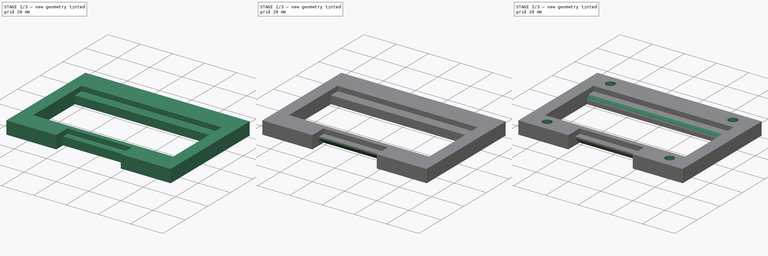
[diagram: build sequence overview — one tinted view per stage of 3, left to right]
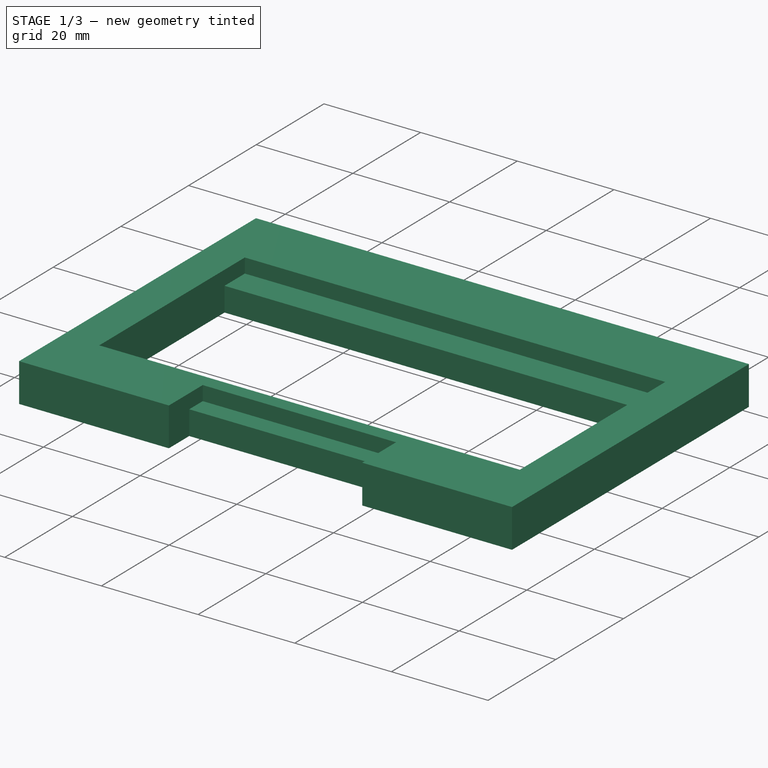
[diagram: stage 1 of 3 — iso view after this stage's code; geometry added in this stage tinted green]
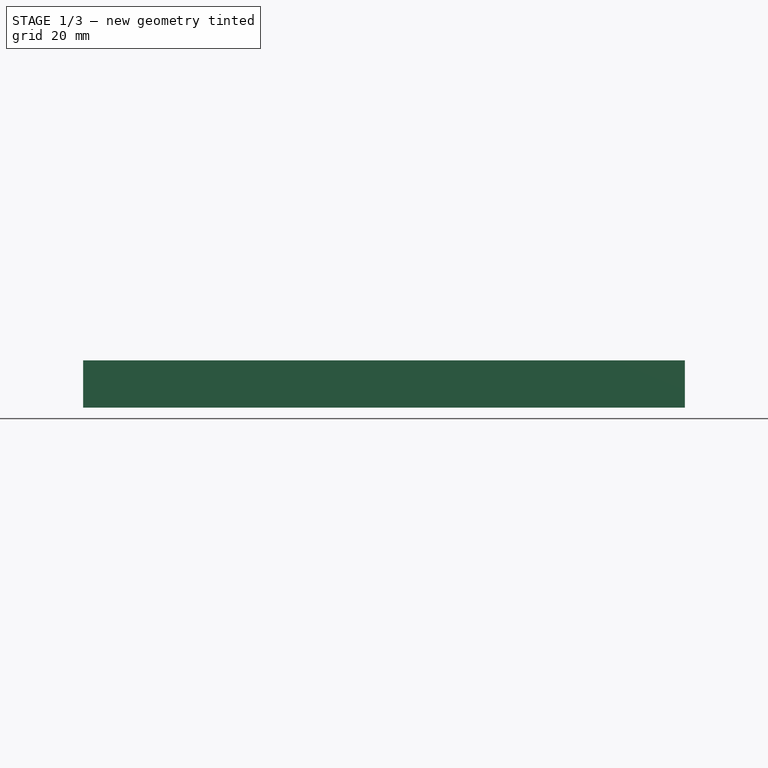
[diagram: stage 1 of 3 — front view after this stage's code; geometry added in this stage tinted green]
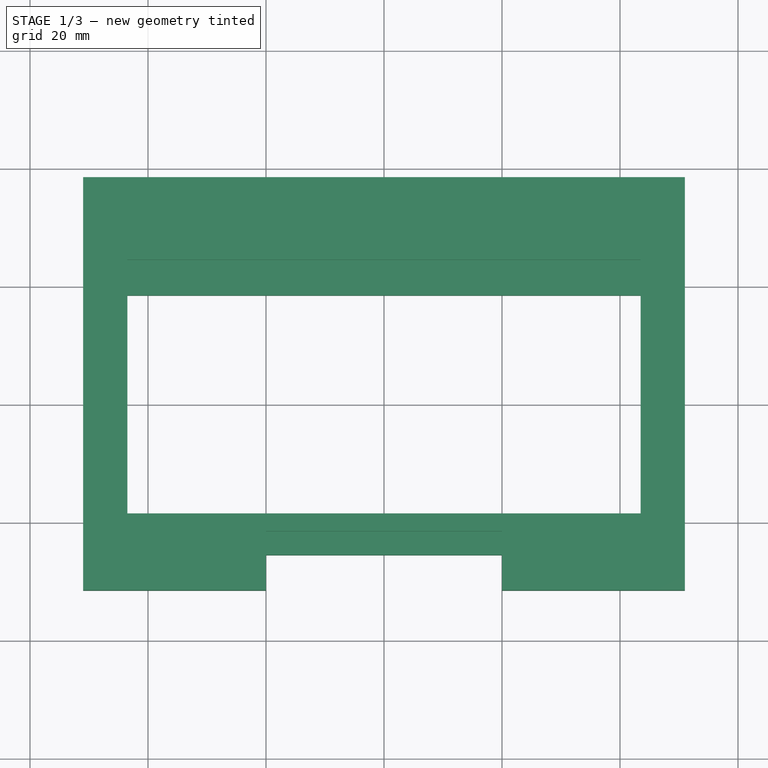
[diagram: stage 1 of 3 — top view after this stage's code; geometry added in this stage tinted green]
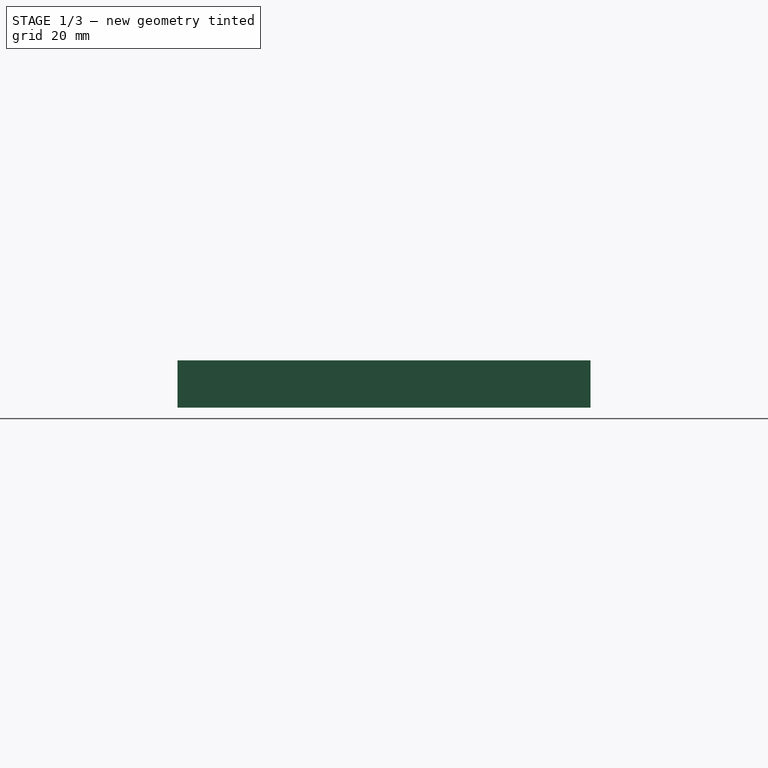
[diagram: stage 1 of 3 — right view after this stage's code; geometry added in this stage tinted green]
FCSTD DOCUMENT  (FreeCAD 0.21R33771 (Git))
Label: Basil-KlickFix-Compatiable-Mount
License: All rights reserved
LicenseURL: https://en.wikipedia.org/wiki/All_rights_reserved
objects: Sketcher::SketchObject×3, PartDesign::Pad×2, PartDesign::Chamfer×1, PartDesign::Fillet×1, PartDesign::Pocket×1, PartDesign::Body×1
note: 14 computed .brp shape members not serialized (recipe doc carries the construction recipe); baked Part::Feature solids carry a one-line shape summary decoded from their .brp

FEATURE [Sketcher::SketchObject] Sketch
  FullyConstrained = true
  MapMode = 5
  Support = -> [XY_Plane]
  sketch-geometry (15):
    g0: LineSegment StartX=-51 StartY=-31.5 StartZ=0 EndX=-51 EndY=38.5 EndZ=0
    g1: LineSegment StartX=-51 StartY=38.5 StartZ=0 EndX=51 EndY=38.5 EndZ=0
    g2: LineSegment StartX=51 StartY=38.5 StartZ=0 EndX=51 EndY=-31.5 EndZ=0
    g3: GeomPoint X=0 Y=0 Z=0
    g4: LineSegment StartX=-51 StartY=-31.5 StartZ=0 EndX=-20 EndY=-31.5 EndZ=0
    g5: LineSegment StartX=51 StartY=-31.5 StartZ=0 EndX=20 EndY=-31.5 EndZ=0
    g6: LineSegment StartX=-20 StartY=-31.5 StartZ=0 EndX=-20 EndY=-25.5 EndZ=0
    g7: LineSegment StartX=-20 StartY=-25.5 StartZ=0 EndX=20 EndY=-25.5 EndZ=0
    g8: LineSegment StartX=20 StartY=-25.5 StartZ=0 EndX=20 EndY=-31.5 EndZ=0
    g9: LineSegment StartX=-43.5 StartY=-18.5 StartZ=0 EndX=43.5 EndY=-18.5 EndZ=0
    g10: LineSegment StartX=43.5 StartY=-18.5 StartZ=0 EndX=43.5 EndY=18.5 EndZ=0
    g11: LineSegment StartX=43.5 StartY=18.5 StartZ=0 EndX=-43.5 EndY=18.5 EndZ=0
    g12: LineSegment StartX=-43.5 StartY=18.5 StartZ=0 EndX=-43.5 EndY=-18.5 EndZ=0
    g13: LineSegment StartX=-43.5 StartY=18.5 StartZ=0 EndX=-51 EndY=18.5 EndZ=0
    g14: LineSegment StartX=43.5 StartY=18.5 StartZ=0 EndX=51 EndY=18.5 EndZ=0
  constraints (41):
    c: Coincident(g0,g1)
    c: Coincident(g1,g2)
    c: Horizontal(g1)
    c: Vertical(g0)
    c: Vertical(g2)
    c: Coincident(g3,g-1)
    c: DistanceY(g0,g0) = 70
    c: DistanceX(g0,g1) = 102
    c: Coincident(g4,g0)
    c: Horizontal(g4)
    c: Coincident(g5,g2)
    c: Horizontal(g5)
    c: Coincident(g6,g4)
    c: Vertical(g6)
    c: Coincident(g7,g6)
    c: Horizontal(g7)
    c: Coincident(g8,g7)
    c: Coincident(g8,g5)
    c: Vertical(g8)
    c: Symmetric(g4,g5,g-2)
    c: DistanceX(g7,g7) = 40
    c: Coincident(g9,g10)
    c: Coincident(g10,g11)
    c: Coincident(g11,g12)
    c: Coincident(g12,g9)
    c: Horizontal(g9)
    c: Horizontal(g11)
    c: Vertical(g10)
    c: Vertical(g12)
    c: Coincident(g13,g11)
    c: PointOnObject(g13,g0)
    c: Horizontal(g13)
    c: Coincident(g14,g10)
    c: PointOnObject(g14,g2)
    c: Horizontal(g14)
    c: Equal(g13,g14)
    c: DistanceX(g11,g11) = 87
    c: DistanceY(g13,g0) = 20
    c: DistanceY(g7,g9) = 7
    c: DistanceY(g9,g11) = 37
    c: Symmetric(g9,g10,g3)
FEATURE [PartDesign::Pad] Pad  label="Retainer"
  Direction = (0,0,1)
  Length = 5
  Length2 = 10
  Profile = -> Sketch
  ReferenceAxis = -> Sketch [N_Axis]
  Type = 0
FEATURE [Sketcher::SketchObject] Sketch001
  ExternalGeometry = -> [Pad]
  FullyConstrained = true
  MapMode = 5
  Placement = pos=(0,0,5) rot=(0,0,1;0rad)
  Support = -> [Pad]
  sketch-geometry (12):
    g0: LineSegment StartX=-51 StartY=38.5 StartZ=0 EndX=51 EndY=38.5 EndZ=0
    g1: LineSegment StartX=51 StartY=38.5 StartZ=0 EndX=51 EndY=-31.5 EndZ=0
    g2: LineSegment StartX=51 StartY=-31.5 StartZ=0 EndX=20 EndY=-31.5 EndZ=0
    g3: LineSegment StartX=20 StartY=-31.5 StartZ=0 EndX=20 EndY=-21.5 EndZ=0
    g4: LineSegment StartX=20 StartY=-21.5 StartZ=0 EndX=-20 EndY=-21.5 EndZ=0
    g5: LineSegment StartX=-20 StartY=-21.5 StartZ=0 EndX=-20 EndY=-31.5 EndZ=0
    g6: LineSegment StartX=-20 StartY=-31.5 StartZ=0 EndX=-51 EndY=-31.5 EndZ=0
    g7: LineSegment StartX=-51 StartY=-31.5 StartZ=0 EndX=-51 EndY=38.5 EndZ=0
    g8: LineSegment StartX=43.5 StartY=-18.5 StartZ=0 EndX=-43.5 EndY=-18.5 EndZ=0
    g9: LineSegment StartX=-43.5 StartY=-18.5 StartZ=0 EndX=-43.5 EndY=24.5 EndZ=0
    g10: LineSegment StartX=-43.5 StartY=24.5 StartZ=0 EndX=43.5 EndY=24.5 EndZ=0
    g11: LineSegment StartX=43.5 StartY=24.5 StartZ=0 EndX=43.5 EndY=-18.5 EndZ=0
  constraints (28):
    c: Coincident(g-6,g0)
    c: Coincident(g0,g-5)
    c: Coincident(g0,g1)
    c: Coincident(g1,g-10)
    c: Coincident(g1,g2)
    c: Coincident(g2,g-10)
    c: Coincident(g2,g3)
    c: Coincident(g3,g4)
    c: Horizontal(g4)
    c: Coincident(g4,g5)
    c: Coincident(g5,g-7)
    c: Coincident(g5,g6)
    c: Coincident(g6,g-7)
    c: Coincident(g6,g7)
    c: Coincident(g7,g0)
    c: PointOnObject(g-8,g5)
    c: PointOnObject(g-9,g3)
    c: Coincident(g-4,g8)
    c: Coincident(g8,g-4)
    c: Coincident(g8,g9)
    c: Coincident(g9,g10)
    c: Horizontal(g10)
    c: Coincident(g11,g10)
    c: Coincident(g11,g8)
    c: PointOnObject(g-12,g11)
    c: PointOnObject(g-11,g9)
    c: DistanceY(g4,g8) = 3
    c: DistanceY(g-11,g9) = 6
FEATURE [PartDesign::Pad] Pad001  label="Spacer"
  BaseFeature = -> Pad
  Direction = (0,0,1)
  Length = 3
  Length2 = 10
  Profile = -> Sketch001
  ReferenceAxis = -> Sketch001 [N_Axis]
  Type = 0
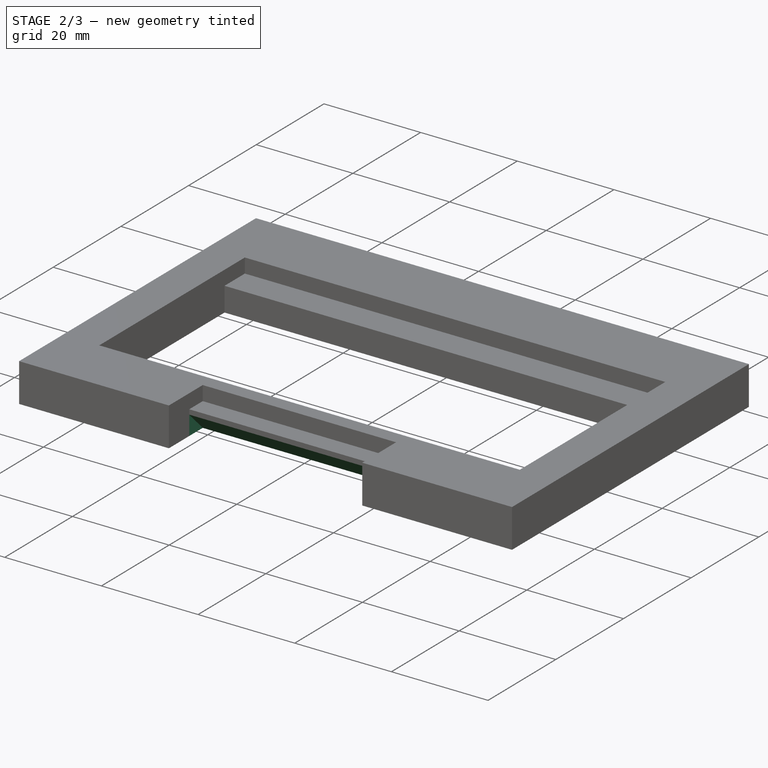
[diagram: stage 2 of 3 — iso view after this stage's code; geometry added in this stage tinted green]
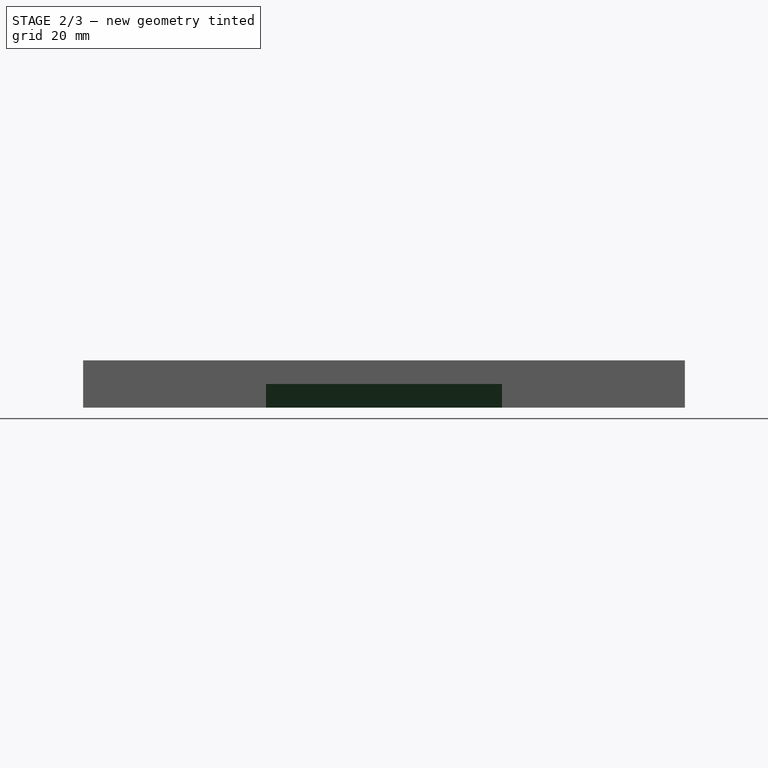
[diagram: stage 2 of 3 — front view after this stage's code; geometry added in this stage tinted green]
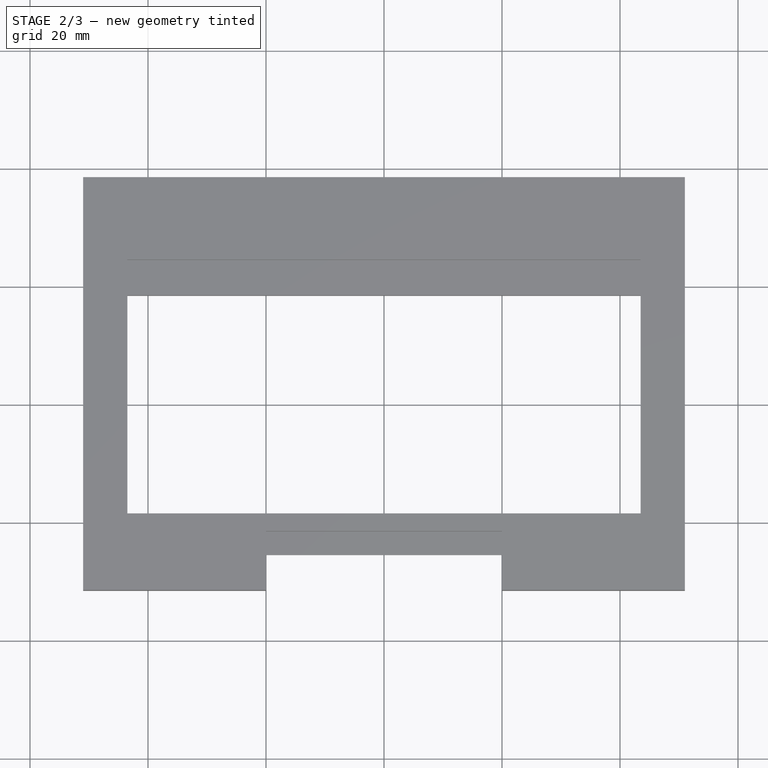
[diagram: stage 2 of 3 — top view after this stage's code; geometry added in this stage tinted green]
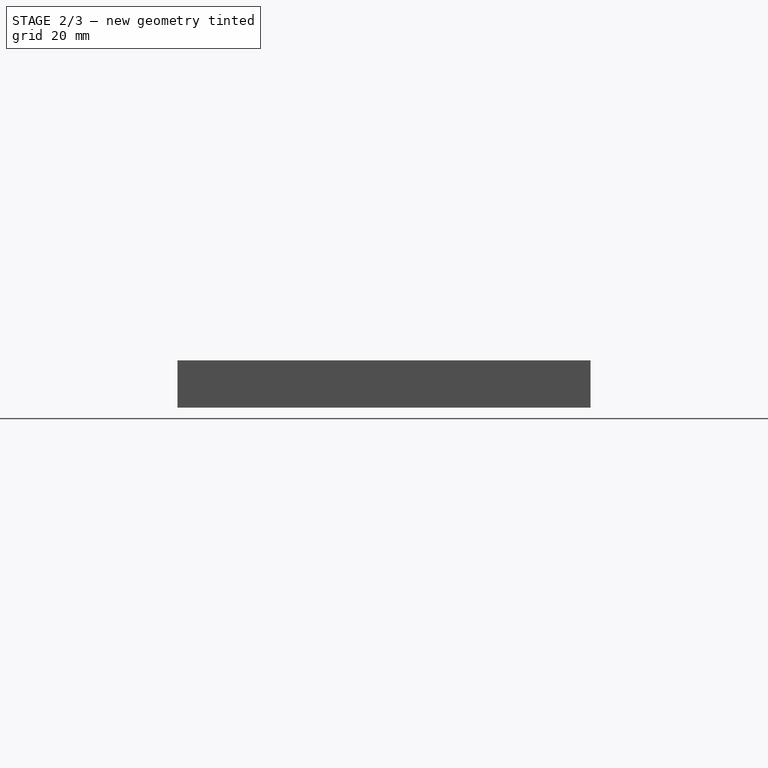
[diagram: stage 2 of 3 — right view after this stage's code; geometry added in this stage tinted green]
FEATURE [PartDesign::Chamfer] Chamfer
  Angle = 45
  Base = -> Pad001 [Edge14]
  BaseFeature = -> Pad001
  ChamferType = 0
  FlipDirection = false
  Size = 4
  Size2 = 1
  SupportTransform = false
  UseAllEdges = false
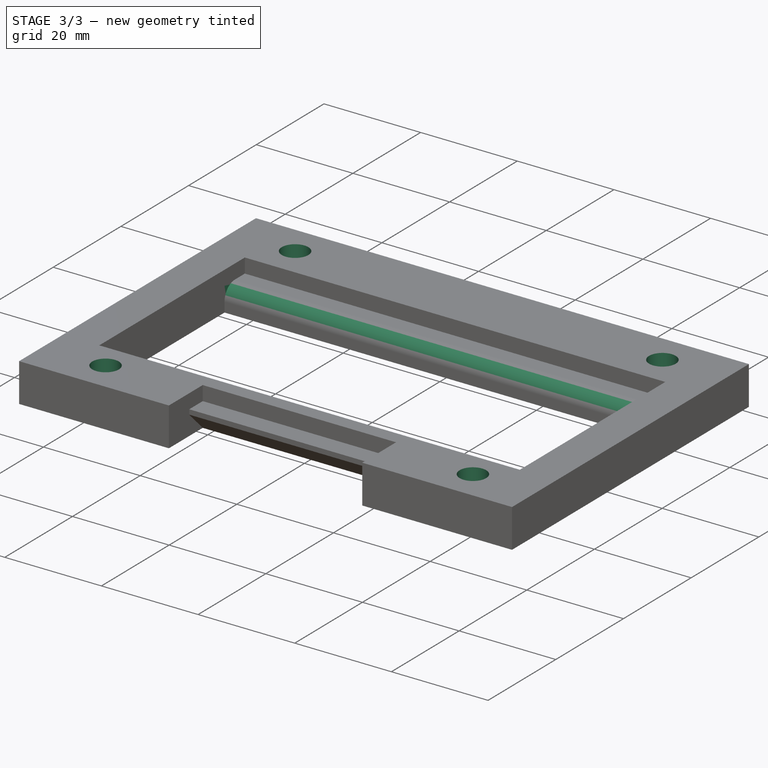
[diagram: stage 3 of 3 — iso view after this stage's code; geometry added in this stage tinted green]
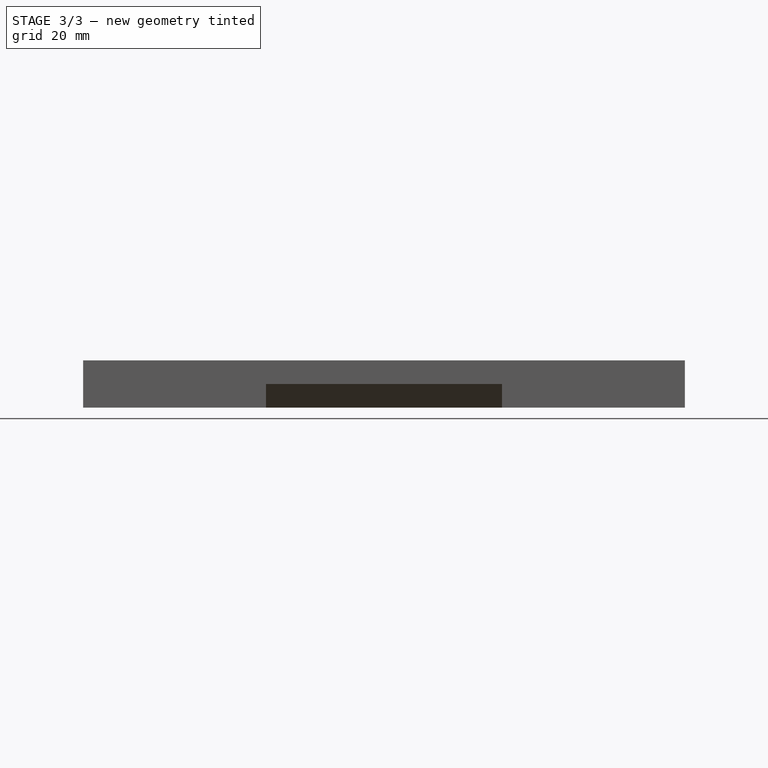
[diagram: stage 3 of 3 — front view after this stage's code; geometry added in this stage tinted green]
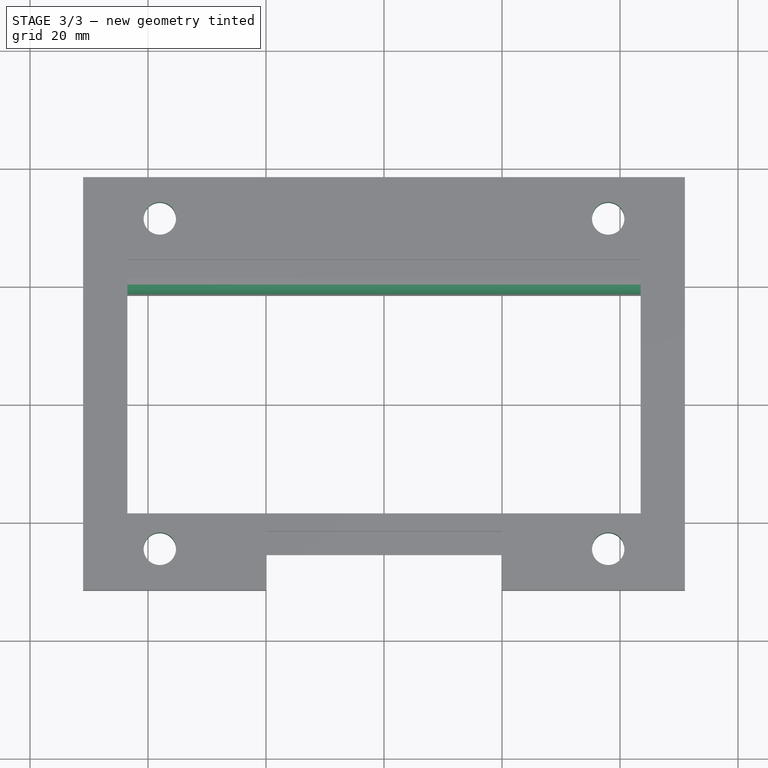
[diagram: stage 3 of 3 — top view after this stage's code; geometry added in this stage tinted green]
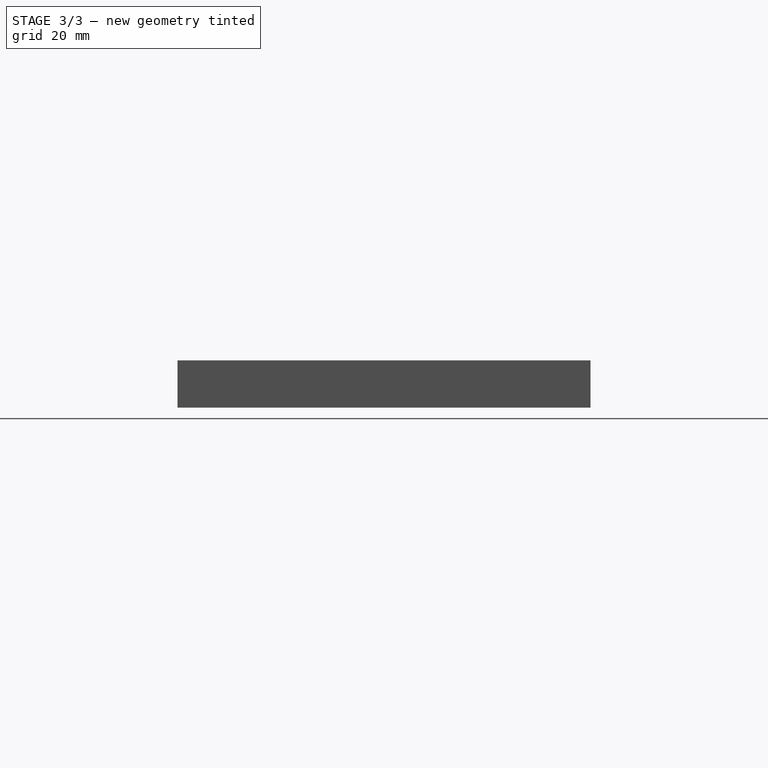
[diagram: stage 3 of 3 — right view after this stage's code; geometry added in this stage tinted green]
FEATURE [PartDesign::Fillet] Fillet
  Base = -> Chamfer [Edge39]
  BaseFeature = -> Chamfer
  Radius = 3
  SupportTransform = false
  UseAllEdges = false
FEATURE [Sketcher::SketchObject] Sketch002
  ExternalGeometry = -> [Fillet]
  FullyConstrained = true
  MapMode = 5
  Placement = pos=(0,0,8) rot=(0,0,1;0rad)
  Support = -> [Fillet]
  sketch-geometry (16):
    g0: LineSegment StartX=-38 StartY=31.5 StartZ=0 EndX=38 EndY=31.5 EndZ=0
    g1: LineSegment StartX=38 StartY=31.5 StartZ=0 EndX=38 EndY=-24.5 EndZ=0
    g2: LineSegment StartX=38 StartY=-24.5 StartZ=0 EndX=-38 EndY=-24.5 EndZ=0
    g3: LineSegment StartX=-38 StartY=-24.5 StartZ=0 EndX=-38 EndY=31.5 EndZ=0
    g4: LineSegment StartX=-38 StartY=-24.5 StartZ=0 EndX=-51 EndY=-24.5 EndZ=0
    g5: LineSegment StartX=38 StartY=-24.5 StartZ=0 EndX=51 EndY=-24.5 EndZ=0
    g6: LineSegment StartX=38 StartY=31.5 StartZ=0 EndX=51 EndY=31.5 EndZ=0
    g7: LineSegment StartX=38 StartY=31.5 StartZ=0 EndX=38 EndY=38.5 EndZ=0
    g8: LineSegment StartX=-38 StartY=31.5 StartZ=0 EndX=-51 EndY=31.5 EndZ=0
    g9: LineSegment StartX=-38 StartY=31.5 StartZ=0 EndX=-38 EndY=38.5 EndZ=0
    g10: LineSegment StartX=-38 StartY=-24.5 StartZ=0 EndX=-38 EndY=-31.5 EndZ=0
    g11: LineSegment StartX=38 StartY=-24.5 StartZ=0 EndX=38 EndY=-31.5 EndZ=0
    g12: Circle CenterX=-38 CenterY=31.5 CenterZ=0 NormalX=0 NormalY=0 NormalZ=1 AngleXU=0 Radius=2.75
    g13: Circle CenterX=38 CenterY=31.5 CenterZ=0 NormalX=0 NormalY=0 NormalZ=1 AngleXU=0 Radius=2.75
    g14: Circle CenterX=38 CenterY=-24.5 CenterZ=0 NormalX=0 NormalY=0 NormalZ=1 AngleXU=0 Radius=2.75
    g15: Circle CenterX=-38 CenterY=-24.5 CenterZ=0 NormalX=0 NormalY=0 NormalZ=1 AngleXU=0 Radius=2.75
  constraints (44):
    c: Coincident(g0,g1)
    c: Coincident(g1,g2)
    c: Coincident(g2,g3)
    c: Coincident(g3,g0)
    c: Horizontal(g0)
    c: Horizontal(g2)
    c: Vertical(g1)
    c: Vertical(g3)
    c: Coincident(g4,g2)
    c: PointOnObject(g4,g-3)
    c: Coincident(g5,g1)
    c: PointOnObject(g5,g-5)
    c: Horizontal(g5)
    c: Coincident(g6,g0)
    c: PointOnObject(g6,g-5)
    c: Coincident(g7,g0)
    c: PointOnObject(g7,g-4)
    c: Vertical(g7)
    c: Coincident(g8,g0)
    c: PointOnObject(g8,g-3)
    c: Horizontal(g8)
    c: Coincident(g9,g0)
    c: PointOnObject(g9,g-4)
    c: Horizontal(g4)
    c: Coincident(g10,g2)
    c: PointOnObject(g10,g-7)
    c: Vertical(g10)
    c: Coincident(g11,g1)
    c: PointOnObject(g11,g-6)
    c: Vertical(g11)
    c: Vertical(g9)
    c: Equal(g8,g6)
    c: Equal(g6,g5)
    c: Equal(g9,g10)
    c: DistanceX(g8,g8) = 13
    c: DistanceY(g9,g9) = 7
    c: Coincident(g12,g0)
    c: Coincident(g13,g0)
    c: Coincident(g14,g1)
    c: Coincident(g15,g2)
    c: Equal(g15,g12)
    c: Equal(g12,g13)
    c: Equal(g13,g14)
    c: Diameter(g12) = 5.5
FEATURE [PartDesign::Pocket] Pocket
  BaseFeature = -> Fillet
  Direction = (0,0,-1)
  Length = 5.5
  Length2 = 5
  Profile = -> Sketch002
  ReferenceAxis = -> Sketch002 [N_Axis]
  Type = 1
FEATURE [PartDesign::Body] Body  label="Körper"
  Group = -> [Sketch,Pad,Sketch001,Pad001,Chamfer,Fillet,Sketch002,Pocket]
  Origin = -> Origin
  Tip = -> Pocket
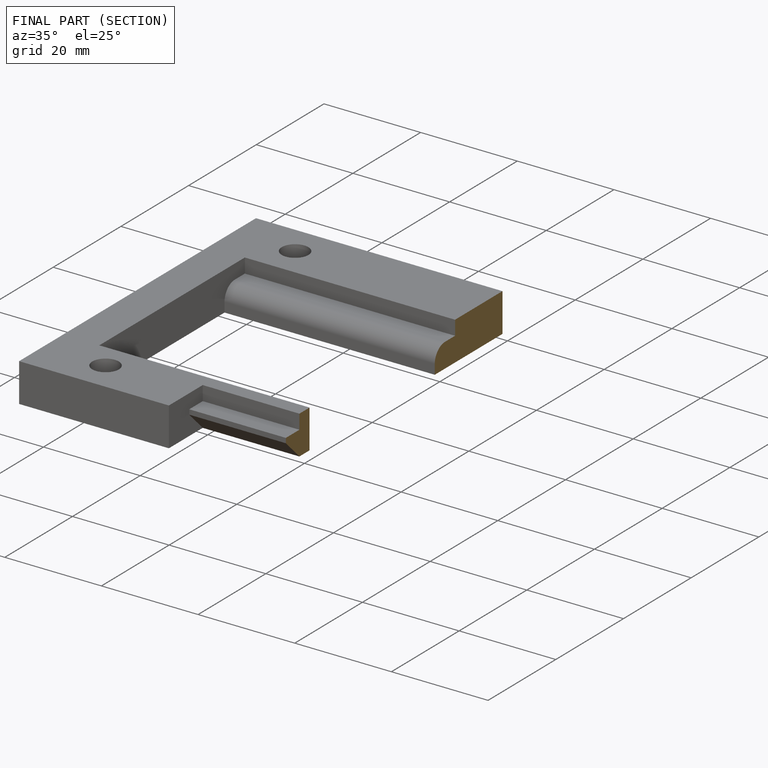
[diagram: finished part — half-section view (interior)]
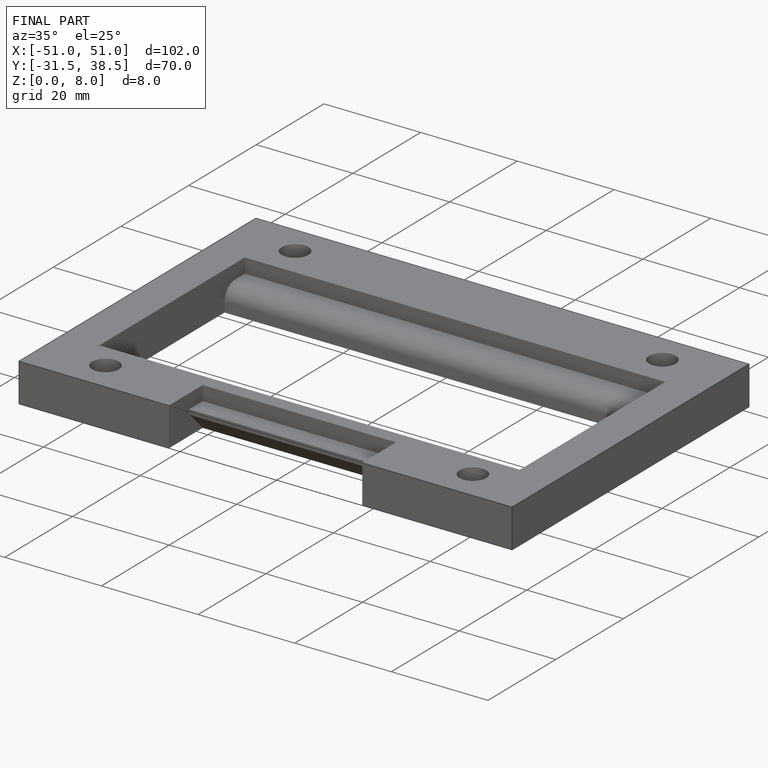
[diagram: finished part — iso view with bounding-box wireframe]
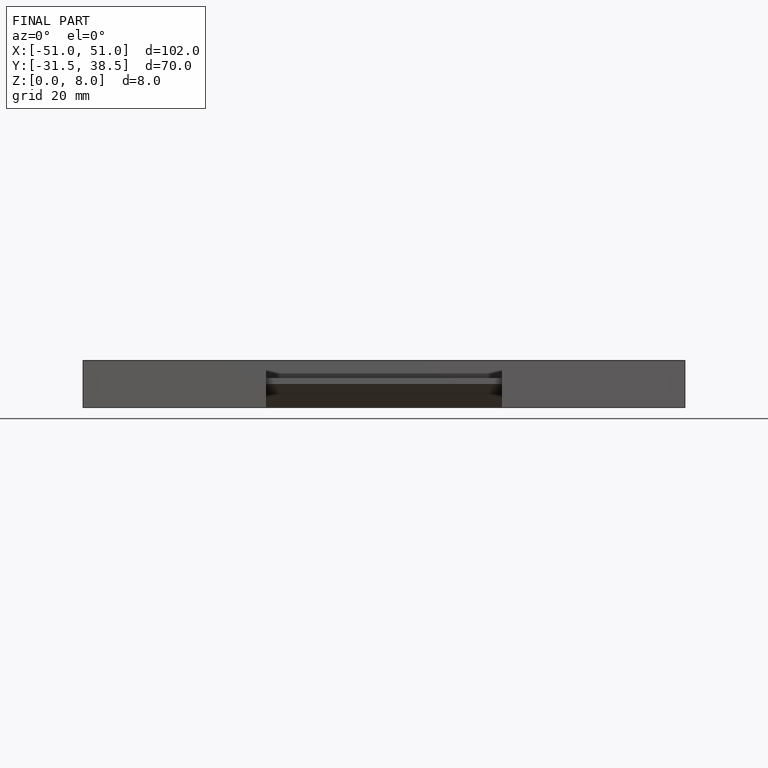
[diagram: finished part — front view with bounding-box wireframe]
